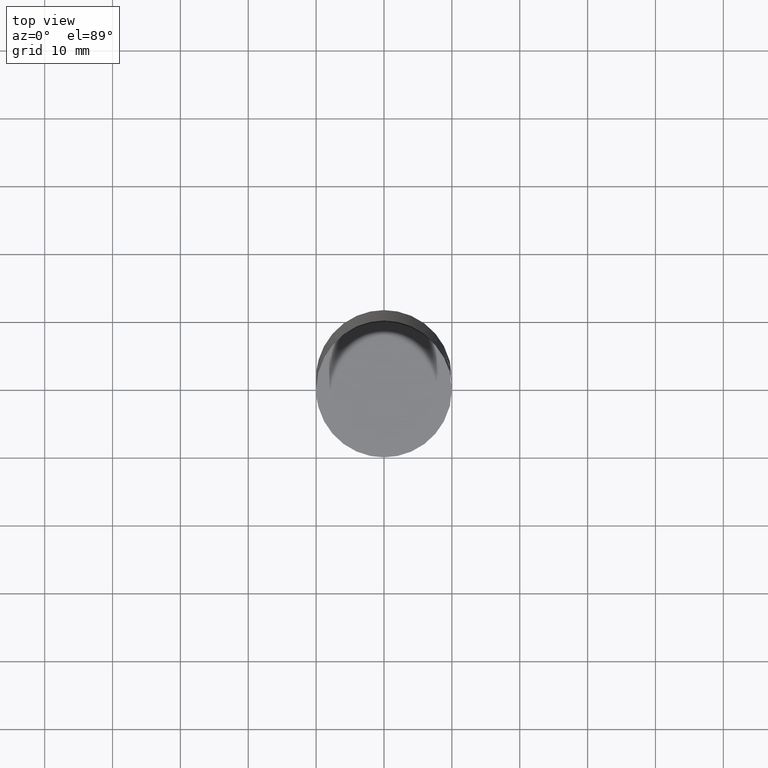
[diagram: clean part render]
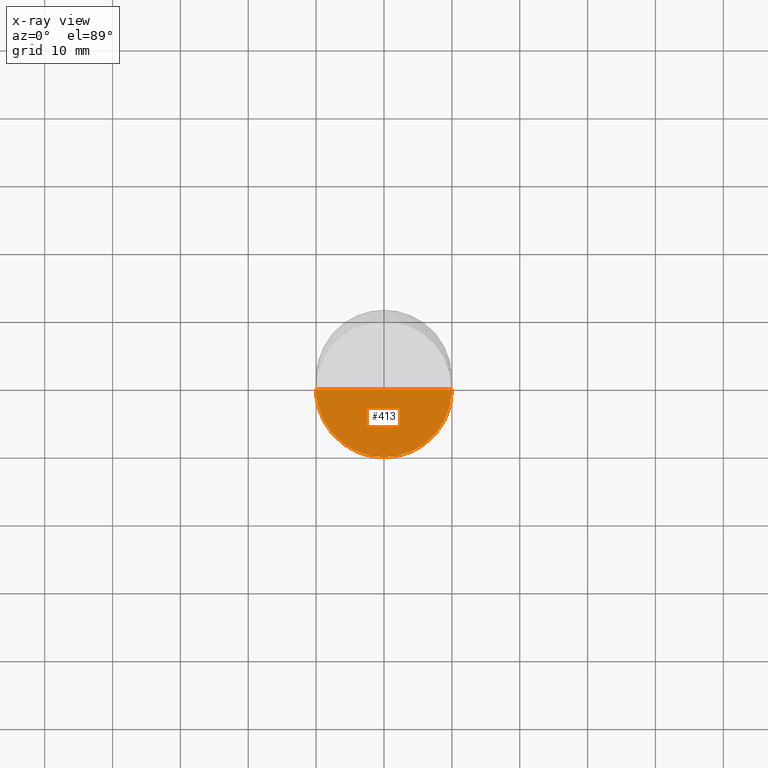
[diagram: x-ray — body ghosted, one internal face saturated and labeled with its STEP entity id]
A machine part, top view, then the same camera in x-ray: the body is ghosted and one INTERNAL B-rep face — a face not visible from any outside direction — is saturated and labeled: STEP entity #413.
In plain terms, the highlighted face is a freeform B-spline surface patch.
Its self-contained STEP definition (entity closure, byte-faithful):
#266=CARTESIAN_POINT('',(10.0,0.0,-48.225));
#270=CARTESIAN_POINT('',(-10.0,0.0,-48.225));
#271=CARTESIAN_POINT('',(0.0,0.0,-48.225));
#275=CARTESIAN_POINT('',(-10.0,-10.0,-48.225));
#276=CARTESIAN_POINT('',(0.0,-10.0,-48.225));
#277=CARTESIAN_POINT('',(10.0,-10.0,-48.225));
#398=(
BOUNDED_SURFACE()
B_SPLINE_SURFACE(1,2,(
(#270,#275,#276,#277,#266),
(#271,#271,#271,#271,#271)
), .UNSPECIFIED.,.F.,.F.,.F.)
B_SPLINE_SURFACE_WITH_KNOTS((2,2),(3,2,3),(
0.0,1.0),(
0.0,0.5,1.0), .UNSPECIFIED.)
GEOMETRIC_REPRESENTATION_ITEM()
RATIONAL_B_SPLINE_SURFACE(((1.0,0.707106781187,1.0,0.707106781187,1.0),
(1.0,0.707106781187,1.0,0.707106781187,1.0)
))
REPRESENTATION_ITEM('')
SURFACE()
);
#399=(
BOUNDED_CURVE()
B_SPLINE_CURVE(1,(#271,#266),.UNSPECIFIED.,.F.,.F.)
B_SPLINE_CURVE_WITH_KNOTS((2,2),
(0.0,1.0),.UNSPECIFIED.)
CURVE()
GEOMETRIC_REPRESENTATION_ITEM()
RATIONAL_B_SPLINE_CURVE((1.0,1.0))
REPRESENTATION_ITEM('')
);
#400=(
BOUNDED_CURVE()
B_SPLINE_CURVE(2,(#266,#277,#276,#275,#270),.UNSPECIFIED.,.F.,.F.)
B_SPLINE_CURVE_WITH_KNOTS((3,2,3),
(0.0,0.5,1.0),.UNSPECIFIED.)
CURVE()
GEOMETRIC_REPRESENTATION_ITEM()
RATIONAL_B_SPLINE_CURVE((1.0,0.707106781187,1.0,0.707106781187,1.0))
REPRESENTATION_ITEM('')
);
#401=(
BOUNDED_CURVE()
B_SPLINE_CURVE(1,(#270,#271),.UNSPECIFIED.,.F.,.F.)
B_SPLINE_CURVE_WITH_KNOTS((2,2),
(0.0,1.0),.UNSPECIFIED.)
CURVE()
GEOMETRIC_REPRESENTATION_ITEM()
RATIONAL_B_SPLINE_CURVE((1.0,1.0))
REPRESENTATION_ITEM('')
);
#402=VERTEX_POINT('',#266);
#403=VERTEX_POINT('',#270);
#404=VERTEX_POINT('',#271);
#405=EDGE_CURVE('',#404,#402,#399,.T.);
#406=EDGE_CURVE('',#402,#403,#400,.T.);
#407=EDGE_CURVE('',#403,#404,#401,.T.);
#408=ORIENTED_EDGE('',*,*,#405,.T.);
#409=ORIENTED_EDGE('',*,*,#406,.T.);
#410=ORIENTED_EDGE('',*,*,#407,.T.);
#411=EDGE_LOOP('',(#408,#409,#410));
#412=FACE_OUTER_BOUND('',#411,.T.);
#413=ADVANCED_FACE('',(#412),#398,.T.);